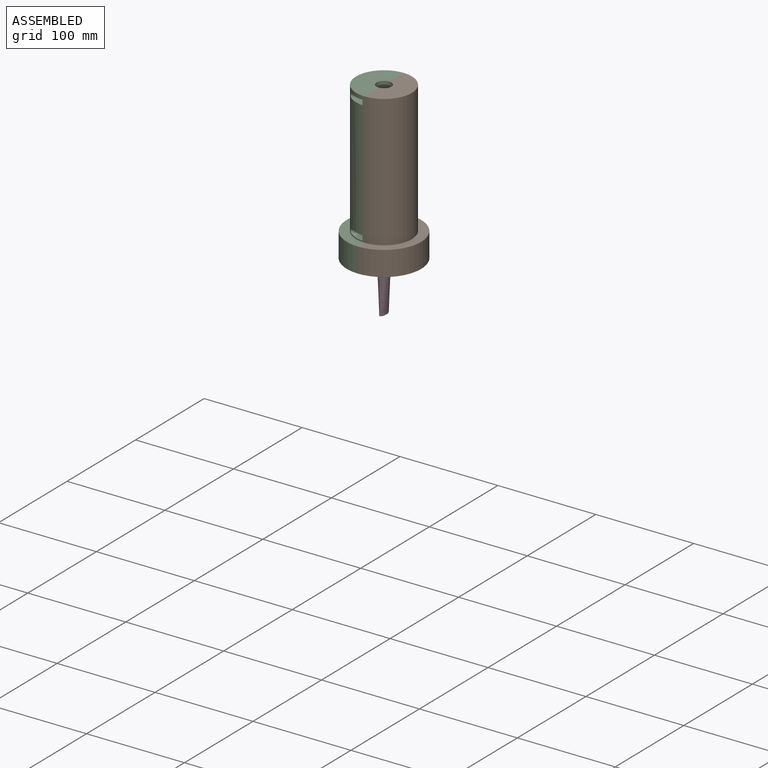
[diagram: assembled view]
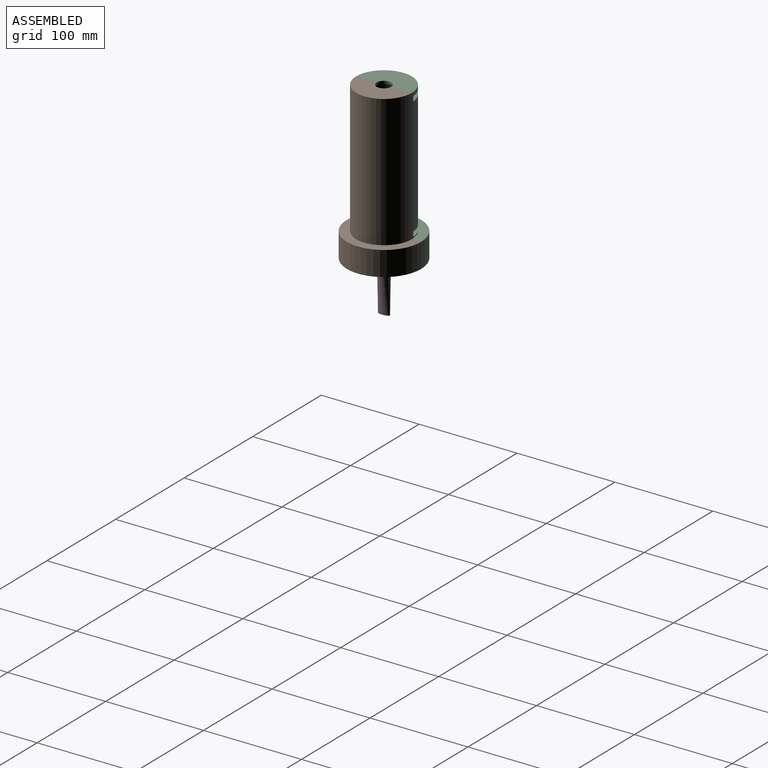
[diagram: assembled view, second angle]
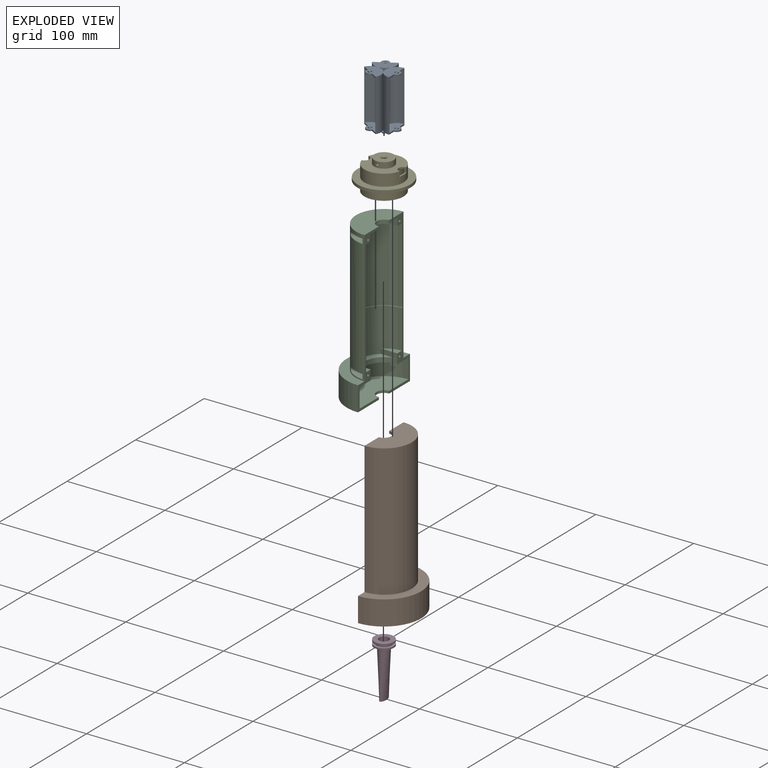
[diagram: exploded view]
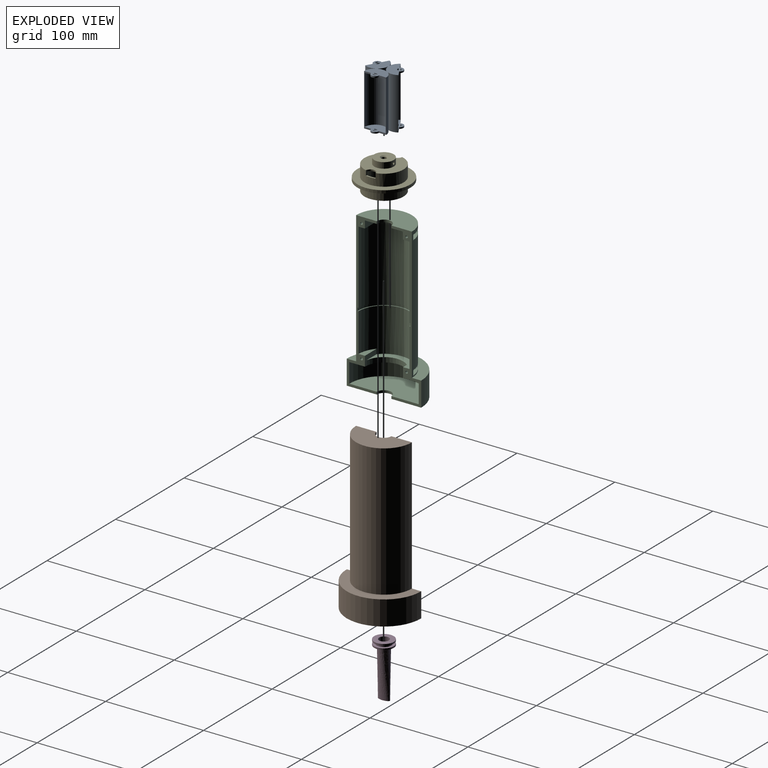
[diagram: exploded view, second angle]
ASSEMBLY  parts=5 mates=7
PART A: 68 faces, bbox 33.8x33.2x59 mm
  f0: cylinder r=10.75mm len=50mm, axis (0,0,-1), area 1688.6mm2, adj f1,f23,f24,f43
  f1: plane 53x7.25mm, normal (0,1,0), area 46.8mm2, adj f0,f2,f24,f30,f41,f43,f51,f60
  f2: cylinder r=11.25mm len=53mm, axis (0,0,-1), area 571.3mm2, adj f1,f3,f41,f60
  f3: plane 53x0.08mm, normal (-0.87,0.5,0), area 4.7mm2, adj f2,f4,f41,f60
  f4: cylinder r=11.25mm len=53mm, axis (0,0,-1), area 571.3mm2, adj f3,f5,f41,f60
  f5: plane 53x6.28mm, normal (-0.87,-0.5,0), area 46.7mm2, adj f4,f6,f38,f41,f42,f44,f49,f60
  f6: cylinder r=10.75mm len=50mm, axis (0,0,-1), area 1688.6mm2, adj f5,f7,f42,f44
  f7: plane 53x6.28mm, normal (-0.87,-0.5,0), area 46.7mm2, adj f6,f8,f38,f41,f42,f44,f49,f60
  f8: cylinder r=11.25mm len=53mm, axis (0,0,-1), area 571.3mm2, adj f7,f9,f41,f60
  f9: plane 53x0.09mm, normal (0,-1,0), area 4.7mm2, adj f8,f10,f41,f60
  f10: cylinder r=11.25mm len=53mm, axis (0,0,-1), area 571.3mm2, adj f9,f11,f41,f60
  f11: plane 53x6.28mm, normal (0.87,-0.5,0), area 46.7mm2, adj f10,f12,f25,f31,f41,f50,f60,f61
  f12: cylinder r=10.75mm len=50mm, axis (0,0,-1), area 1688.6mm2, adj f11,f13,f25,f61
  f13: plane 53x6.28mm, normal (0.87,-0.5,0), area 46.7mm2, adj f12,f14,f25,f31,f41,f50,f60,f61
  f14: cylinder r=11.25mm len=53mm, axis (0,0,-1), area 571.3mm2, adj f13,f15,f41,f60
  f15: plane 53x0.08mm, normal (0.87,0.5,0), area 4.7mm2, adj f14,f16,f41,f60
  f16: cylinder r=11.25mm len=53mm, axis (0,0,-1), area 571.3mm2, adj f15,f23,f41,f60
  f17: cylinder r=11.25mm len=51.5mm, axis (0,0,-1), area 503.6mm2, adj f18,f22,f60,f62
  f18: plane 51.5x0.08mm, normal (-0.87,-0.5,0), area 4.6mm2, adj f17,f19,f60,f62
  f19: cylinder r=11.25mm len=51.5mm, axis (0,0,-1), area 503.6mm2, adj f18,f20,f60,f62
  f20: plane 51.5x0.09mm, normal (0,1,0), area 4.6mm2, adj f19,f21,f60,f62
  f21: cylinder r=11.25mm len=51.5mm, axis (0,0,-1), area 503.6mm2, adj f20,f22,f60,f62
  f22: plane 51.5x0.08mm, normal (0.87,-0.5,0), area 4.6mm2, adj f17,f21,f60,f62
  f23: plane 53x7.25mm, normal (0,1,0), area 46.8mm2, adj f0,f16,f24,f30,f41,f43,f51,f60
  f24: plane 21.5x14.75mm, normal (0,0,1), area 199.9mm2, adj f0,f1,f23,f26,f27,f30,f34,f35
  f25: plane 20.06x16.13mm, normal (0,0,1), area 199.9mm2, adj f11,f12,f13,f28,f29,f31,f36,f37
  f26: cylinder r=2mm len=3.71mm, axis (0,0,1), area 7.1mm2, adj f24,f34,f41
  f27: plane 3.71x1.5mm, normal (0,-1,0), area 5.6mm2, adj f24,f35,f41
  f28: plane 3.21x1.85mm, normal (-0.87,0.5,0), area 5.6mm2, adj f25,f36,f41
  f29: cylinder r=2mm len=3.23mm, axis (0,0,1), area 7.1mm2, adj f25,f37,f41
  f30: cylinder r=4mm len=8mm, axis (0,0,1), area 18.8mm2, adj f1,f23,f24,f41
  f31: cylinder r=4mm len=7.46mm, axis (0,0,1), area 18.8mm2, adj f11,f13,f25,f41
  f32: plane 3.21x1.85mm, normal (-0.87,-0.5,0), area 5.6mm2, adj f39,f41,f42
  f33: cylinder r=2mm len=3.23mm, axis (0,0,1), area 7.1mm2, adj f40,f41,f42
  f34: plane 3.71x1.5mm, normal (0,1,0), area 5.6mm2, adj f24,f26,f41
  f35: cylinder r=2mm len=3.71mm, axis (0,0,1), area 7.1mm2, adj f24,f27,f41
  f36: cylinder r=2mm len=3.23mm, axis (0,0,1), area 7.1mm2, adj f25,f28,f41
  f37: plane 3.21x1.85mm, normal (0.87,-0.5,0), area 5.6mm2, adj f25,f29,f41
  f38: cylinder r=4mm len=7.46mm, axis (0,0,1), area 18.8mm2, adj f5,f7,f41,f42
  f39: cylinder r=2mm len=3.23mm, axis (0,0,1), area 7.1mm2, adj f32,f41,f42
  f40: plane 3.21x1.85mm, normal (0.87,0.5,0), area 5.6mm2, adj f33,f41,f42
  f41: plane 33.75x33.23mm, normal (0,0,-1), area 633.7mm2, adj f1,f2,f3,f4,f5,f7,f8,f9
  f42: plane 20.06x16.13mm, normal (0,0,1), area 199.9mm2, adj f5,f6,f7,f32,f33,f38,f39,f40
  f43: plane 21.5x14.75mm, normal (0,0,-1), area 199.9mm2, adj f0,f1,f23,f45,f46,f51,f54,f55
  f44: plane 20.06x16.13mm, normal (0,0,-1), area 199.9mm2, adj f5,f6,f7,f49,f52,f53,f58,f59
  f45: cylinder r=2mm len=3.71mm, axis (0,0,-1), area 7.1mm2, adj f43,f54,f60
  f46: plane 3.71x1.5mm, normal (0,-1,0), area 5.6mm2, adj f43,f55,f60
  f47: plane 3.21x1.85mm, normal (-0.87,0.5,0), area 5.6mm2, adj f56,f60,f61
  f48: cylinder r=2mm len=3.23mm, axis (0,0,-1), area 7.1mm2, adj f57,f60,f61
  f49: cylinder r=4mm len=7.46mm, axis (0,0,-1), area 18.8mm2, adj f5,f7,f44,f60
  f50: cylinder r=4mm len=7.46mm, axis (0,0,-1), area 18.8mm2, adj f11,f13,f60,f61
  f51: cylinder r=4mm len=8mm, axis (0,0,-1), area 18.8mm2, adj f1,f23,f43,f60
  f52: plane 3.21x1.85mm, normal (-0.87,-0.5,0), area 5.6mm2, adj f44,f58,f60
  f53: cylinder r=2mm len=3.23mm, axis (0,0,-1), area 7.1mm2, adj f44,f59,f60
  f54: plane 3.71x1.5mm, normal (0,1,0), area 5.6mm2, adj f43,f45,f60
  f55: cylinder r=2mm len=3.71mm, axis (0,0,-1), area 7.1mm2, adj f43,f46,f60
  f56: cylinder r=2mm len=3.23mm, axis (0,0,-1), area 7.1mm2, adj f47,f60,f61
  f57: plane 3.21x1.85mm, normal (0.87,-0.5,0), area 5.6mm2, adj f48,f60,f61
  f58: cylinder r=2mm len=3.23mm, axis (0,0,-1), area 7.1mm2, adj f44,f52,f60
  f59: plane 3.21x1.85mm, normal (0.87,0.5,0), area 5.6mm2, adj f44,f53,f60
  f60: plane 33.75x33.23mm, normal (0,0,1), area 651.9mm2, adj f1,f2,f3,f4,f5,f7,f8,f9
  f61: plane 20.06x16.13mm, normal (0,0,-1), area 199.9mm2, adj f11,f12,f13,f47,f48,f50,f56,f57
  f62: plane 9.56x8.28mm, normal (0,0,1), area 20.3mm2, adj f17,f18,f19,f20,f21,f22
  f63: cylinder r=2.5mm len=5mm, axis (0,0,1), area 52.7mm2, adj f65,f66,f67
  f64: plane 3x3mm, normal (0,0,-1), area 7.1mm2, adj f65
  f65: cone r=1.5mm half-angle=45deg, axis (0,0,1), area 17.8mm2, adj f63,f64
  f66: cone r=2.5mm half-angle=45deg, axis (0,0,1), area 26.7mm2, adj f41,f63
  f67: cylinder r=1.25mm len=5mm, axis (1,0,0), area 36.7mm2, adj f63
PART B: 36 faces, bbox 76x160x38 mm
  f0: plane 160x30.5mm, normal (0,0,-1), area 644.5mm2, adj f2,f3,f4,f5,f6,f7,f8,f9
  f1: plane 160x30.5mm, normal (0,0,-1), area 644.5mm2, adj f2,f3,f4,f5,f6,f7,f8,f9
  f2: plane 76x38mm, normal (0,-1,0), area 2179.9mm2, adj f0,f1,f11,f35
  f3: plane 71x35.5mm, normal (0,1,0), area 1891.2mm2, adj f0,f1,f4,f35
  f4: cylinder r=35.5mm len=71mm, axis (0,-1,0), area 2230.5mm2, adj f0,f1,f3,f12
  f5: cylinder r=26mm len=52mm, axis (0,-1,0), area 3446.9mm2, adj f0,f1,f13,f16,f17,f18,f19,f34
  f6: plane 57x28.5mm, normal (0,1,0), area 1187.5mm2, adj f0,f1,f9,f32
  f7: cylinder r=26mm len=82.5mm, axis (0,-1,0), area 6456.8mm2, adj f0,f1,f8,f15,f20,f21,f22,f23
  f8: plane 39x26mm, normal (0,-1,0), area 820.3mm2, adj f0,f1,f7,f21,f23,f32
  f9: cylinder r=28.5mm len=135mm, axis (0,-1,0), area 12087.3mm2, adj f0,f1,f6,f10
  f10: plane 76x38mm, normal (0,1,0), area 992.4mm2, adj f0,f1,f9,f11
  f11: cylinder r=38mm len=76mm, axis (0,-1,0), area 2984.5mm2, adj f0,f1,f2,f10
  f12: plane 71x35.5mm, normal (0,-1,0), area 1382.3mm2, adj f0,f1,f4,f33
  f13: plane 54x27mm, normal (0,1,0), area 83.3mm2, adj f0,f1,f5,f14
  f14: cylinder r=27mm len=54mm, axis (0,-1,0), area 254.5mm2, adj f0,f1,f13,f15
  f15: plane 54x27mm, normal (0,-1,0), area 83.3mm2, adj f0,f1,f7,f14
  f16: plane 17.2x6.5mm, normal (0,1,0), area 76.6mm2, adj f1,f5,f17
  f17: plane 17.2x5mm, normal (1,0,0), area 86mm2, adj f1,f5,f16,f34
  f18: plane 17.2x6.5mm, normal (0,1,0), area 76.6mm2, adj f0,f5,f19
  f19: plane 17.2x5mm, normal (-1,0,0), area 86mm2, adj f0,f5,f18,f34
  f20: plane 17.2x6.5mm, normal (0,-1,0), area 76.6mm2, adj f1,f7,f21
  f21: plane 17.2x7.5mm, normal (1,0,0), area 129mm2, adj f1,f7,f8,f20
  f22: plane 17.2x6.5mm, normal (0,-1,0), area 76.6mm2, adj f0,f7,f23
  f23: plane 17.2x7.5mm, normal (-1,0,0), area 129mm2, adj f0,f7,f8,f22
  f24: cylinder r=1mm len=5mm, axis (0,0,1), area 31.4mm2, adj f1,f25
  f25: plane 2x2mm, normal (0,0,-1), area 3.1mm2, adj f24
  f26: cylinder r=1mm len=5mm, axis (0,0,1), area 31.4mm2, adj f1,f27
  f27: plane 2x2mm, normal (0,0,-1), area 3.1mm2, adj f26
  f28: cylinder r=1mm len=5mm, axis (0,0,1), area 31.4mm2, adj f0,f29
  f29: plane 2x2mm, normal (0,0,-1), area 3.1mm2, adj f28
  f30: cylinder r=1mm len=5mm, axis (0,0,1), area 31.4mm2, adj f0,f31
  f31: plane 2x2mm, normal (0,0,-1), area 3.1mm2, adj f30
  f32: cylinder r=7.5mm len=15mm, axis (0,1,0), area 58.9mm2, adj f0,f1,f6,f8
  f33: cylinder r=19.5mm len=39mm, axis (0,-1,0), area 306.3mm2, adj f0,f1,f12,f34
  f34: plane 39x26mm, normal (0,1,0), area 311.3mm2, adj f5,f17,f19,f33
  f35: cylinder r=7.5mm len=15mm, axis (0,-1,0), area 58.9mm2, adj f0,f1,f2,f3
PART C: 48 faces, bbox 76x160x38 mm
  f0: plane 160x30.5mm, normal (0,0,-1), area 640.9mm2, adj f2,f3,f4,f5,f6,f7,f8,f9
  f1: plane 160x30.5mm, normal (0,0,-1), area 640.9mm2, adj f2,f3,f4,f5,f6,f7,f8,f9
  f2: plane 76x38mm, normal (0,-1,0), area 2179.9mm2, adj f0,f1,f11,f47
  f3: plane 71x35.5mm, normal (0,1,0), area 1891.2mm2, adj f0,f1,f4,f47
  f4: cylinder r=35.5mm len=71mm, axis (0,-1,0), area 2230.5mm2, adj f0,f1,f3,f12
  f5: cylinder r=26mm len=52mm, axis (0,-1,0), area 3446.9mm2, adj f0,f1,f13,f16,f17,f18,f19,f46
  f6: plane 57x28.5mm, normal (0,1,0), area 1187.5mm2, adj f0,f1,f9,f44
  f7: cylinder r=26mm len=82.5mm, axis (0,-1,0), area 6456.8mm2, adj f0,f1,f8,f15,f20,f21,f22,f23
  f8: plane 39x26mm, normal (0,-1,0), area 820.3mm2, adj f0,f1,f7,f21,f23,f44
  f9: cylinder r=28.5mm len=135mm, axis (0,-1,0), area 11705.5mm2, adj f0,f1,f6,f10,f24,f25,f26,f27
  f10: plane 76x38mm, normal (0,1,0), area 992.4mm2, adj f0,f1,f9,f11
  f11: cylinder r=38mm len=76mm, axis (0,-1,0), area 2984.5mm2, adj f0,f1,f2,f10
  f12: plane 71x35.5mm, normal (0,-1,0), area 1382.3mm2, adj f0,f1,f4,f45
  f13: plane 54x27mm, normal (0,1,0), area 83.3mm2, adj f0,f1,f5,f14
  f14: cylinder r=27mm len=54mm, axis (0,-1,0), area 254.5mm2, adj f0,f1,f13,f15
  f15: plane 54x27mm, normal (0,-1,0), area 83.3mm2, adj f0,f1,f7,f14
  f16: plane 17.2x6.5mm, normal (0,1,0), area 76.6mm2, adj f1,f5,f17
  f17: plane 17.2x5mm, normal (1,0,0), area 86mm2, adj f1,f5,f16,f46
  f18: plane 17.2x6.5mm, normal (0,1,0), area 76.6mm2, adj f0,f5,f19
  f19: plane 17.2x5mm, normal (-1,0,0), area 86mm2, adj f0,f5,f18,f46
  f20: plane 17.2x6.5mm, normal (0,-1,0), area 76.6mm2, adj f1,f7,f21
  f21: plane 17.2x7.5mm, normal (1,0,0), area 129mm2, adj f1,f7,f8,f20
  f22: plane 17.2x6.5mm, normal (0,-1,0), area 76.6mm2, adj f0,f7,f23
  f23: plane 17.2x7.5mm, normal (-1,0,0), area 129mm2, adj f0,f7,f8,f22
  f24: plane 14.83x5.43mm, normal (0,1,0), area 52.1mm2, adj f9,f26,f27
  f25: plane 14.83x5.43mm, normal (0,-1,0), area 52.1mm2, adj f9,f26,f27
  f26: cylinder r=2.5mm len=17.8mm, axis (0,0,-1), area 131.8mm2, adj f9,f24,f25,f27
  f27: plane 7.93x5mm, normal (0,0,1), area 32.1mm2, adj f9,f24,f25,f26,f33
  f28: plane 14.83x5.43mm, normal (0,-1,0), area 52.1mm2, adj f9,f29,f31
  f29: cylinder r=2.5mm len=17.8mm, axis (0,0,-1), area 131.8mm2, adj f9,f28,f30,f31
  f30: plane 14.83x5.43mm, normal (0,1,0), area 52.1mm2, adj f9,f29,f31
  f31: plane 7.93x5mm, normal (0,0,1), area 32.1mm2, adj f9,f28,f29,f30,f32
  f32: cylinder r=1.25mm len=2.5mm, axis (0,0,1), area 15.7mm2, adj f1,f31
  f33: cylinder r=1.25mm len=2.5mm, axis (0,0,1), area 15.7mm2, adj f1,f27
  f34: plane 14.83x5.43mm, normal (0,1,0), area 52.1mm2, adj f9,f35,f37
  f35: cylinder r=2.5mm len=17.8mm, axis (0,0,-1), area 131.8mm2, adj f9,f34,f36,f37
  f36: plane 14.83x5.43mm, normal (0,-1,0), area 52.1mm2, adj f9,f35,f37
  f37: plane 7.93x5mm, normal (0,0,1), area 32.1mm2, adj f9,f34,f35,f36,f43
  f38: plane 14.83x5.43mm, normal (0,1,0), area 52.1mm2, adj f9,f39,f41
  f39: cylinder r=2.5mm len=17.8mm, axis (0,0,-1), area 131.8mm2, adj f9,f38,f40,f41
  f40: plane 14.83x5.43mm, normal (0,-1,0), area 52.1mm2, adj f9,f39,f41
  f41: plane 7.93x5mm, normal (0,0,1), area 32.1mm2, adj f9,f38,f39,f40,f42
  f42: cylinder r=1.25mm len=2.5mm, axis (0,0,1), area 15.7mm2, adj f0,f41
  f43: cylinder r=1.25mm len=2.5mm, axis (0,0,1), area 15.7mm2, adj f0,f37
  f44: cylinder r=7.5mm len=15mm, axis (0,1,0), area 58.9mm2, adj f0,f1,f6,f8
  f45: cylinder r=19.5mm len=39mm, axis (0,-1,0), area 306.3mm2, adj f0,f1,f12,f46
  f46: plane 39x26mm, normal (0,1,0), area 311.3mm2, adj f5,f17,f19,f45
  f47: cylinder r=7.5mm len=15mm, axis (0,-1,0), area 58.9mm2, adj f0,f1,f2,f3
PART D: 11 faces, bbox 20x20x55.5 mm
  f0: plane 20x20mm, normal (0,0,1), area 201.1mm2, adj f5,f8
  f1: cylinder r=10mm len=20mm, axis (0,0,-1), area 94.2mm2, adj f2,f3
  f2: plane 20x20mm, normal (0,0,1), area 137.4mm2, adj f1,f4
  f3: plane 20x20mm, normal (0,0,-1), area 235.6mm2, adj f1,f7
  f4: cylinder r=7.5mm len=15mm, axis (0,0,-1), area 117.8mm2, adj f2,f6
  f5: cylinder r=10mm len=20mm, axis (0,0,-1), area 94.2mm2, adj f0,f6
  f6: plane 20x20mm, normal (0,0,-1), area 137.4mm2, adj f4,f5
  f7: cylinder r=5mm len=10mm, axis (0,0,1), area 172.8mm2, adj f3,f10
  f8: bspline ~50x12mm, area 1629.1mm2, adj f0,f9
  f9: plane 12x5mm, normal (0,0,1), area 23.6mm2, adj f8,f10
  f10: bspline ~50x10mm, area 1319.5mm2, adj f7,f9
PART E: 20 faces, bbox 54x54x31 mm
  f0: cylinder r=20mm len=40mm, axis (0,0,-1), area 1256.6mm2, adj f3,f19
  f1: cylinder r=20mm len=40mm, axis (0,0,-1), area 1407.7mm2, adj f2,f6,f7,f8,f9,f18
  f2: plane 40x38.75mm, normal (0,0,1), area 868.1mm2, adj f1,f7,f9,f11
  f3: plane 40x40mm, normal (0,0,-1), area 181.4mm2, adj f0,f4
  f4: cylinder r=18.5mm len=37mm, axis (0,0,-1), area 2667.2mm2, adj f3,f5,f6,f7,f8,f9
  f5: plane 37x35.86mm, normal (0,0,-1), area 1029.9mm2, adj f4,f7,f9
  f6: plane 9.92x2.07mm, normal (0,0,1), area 14.5mm2, adj f1,f4,f7
  f7: cylinder r=5mm len=9.92mm, axis (0,0,1), area 32.2mm2, adj f1,f2,f4,f5,f6
  f8: plane 9.92x2.07mm, normal (0,0,1), area 14.5mm2, adj f1,f4,f9
  f9: cylinder r=5mm len=9.92mm, axis (0,0,1), area 32.2mm2, adj f1,f2,f4,f5,f8
  f10: cylinder r=2.5mm len=5mm, axis (0,0,-1), area 68.4mm2, adj f13,f14,f15,f16
  f11: cylinder r=10mm len=20mm, axis (0,0,-1), area 367.1mm2, adj f2,f12,f15,f16
  f12: plane 20x20mm, normal (0,0,1), area 275.7mm2, adj f11,f14
  f13: plane 5x5mm, normal (0,0,1), area 19.6mm2, adj f10
  f14: cone r=2.5mm half-angle=45deg, axis (0,0,1), area 26.7mm2, adj f10,f12
  f15: cylinder r=1.25mm len=7.84mm, axis (0,-1,0), area 59.9mm2, adj f10,f11
  f16: cylinder r=1.25mm len=7.84mm, axis (0,-1,0), area 59.9mm2, adj f10,f11
  f17: cylinder r=27mm len=54mm, axis (0,0,-1), area 508.9mm2, adj f18,f19
  f18: plane 54x54mm, normal (0,0,1), area 1033.6mm2, adj f1,f17
  f19: plane 54x54mm, normal (0,0,-1), area 1033.6mm2, adj f0,f17
PLACE A rot(axis=(0,0,-1),90deg) t=(-31,-7.39,2.03)mm
PLACE B rot(axis=(0.58,0.58,0.58),120deg) t=(-31,-7.39,-117.48)mm
PLACE C rot(axis=(0.58,-0.58,-0.58),120deg) t=(-31,-7.39,-117.48)mm
PLACE D rot(axis=(0.71,0.71,0),180deg) t=(-31,-7.39,-113.48)mm
PLACE E rot(axis=(-1,0,0),0deg) t=(-31,-7.39,-55.47)mm
MATE planar D.f1 <-> B.f3  axis (0,0,-1) through (-31,-7.39,-114.98)mm
MATE cylindrical D.f4 <-> B.f35  axis (0,0,1) through (-31,-7.39,-114.98)mm
MATE cylindrical E.f17 <-> C.f14  axis (0,0,-1) through (-31,-7.39,-43.97)mm
MATE cylindrical A.f63 <-> E.f10  axis (0,0,1) through (-31,-7.39,-27.47)mm
MATE cylindrical B.f4 <-> C.f4  axis (0,0,-1) through (-31,-7.39,-24.98)mm
MATE planar A.f41 <-> E.f11  axis (0,0,-1) through (-18.01,-11.39,-24.47)mm
MATE cylindrical C.f14 <-> E.f17  axis (0,0,-1) through (-31,-7.39,-43.98)mm
